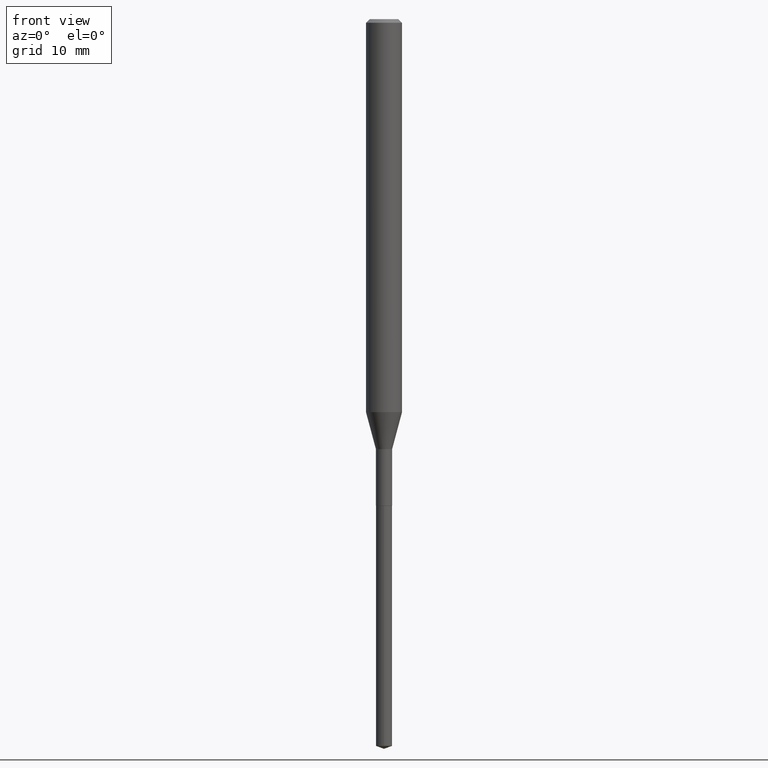
[diagram: clean part render]
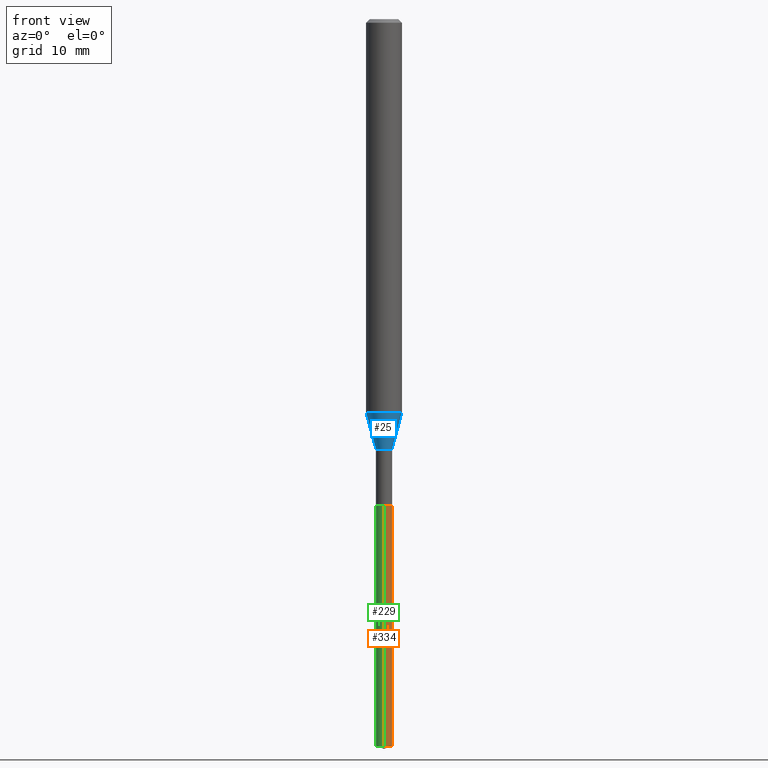
[diagram: same view with three faces highlighted in distinct colors, each labeled with its STEP entity id]
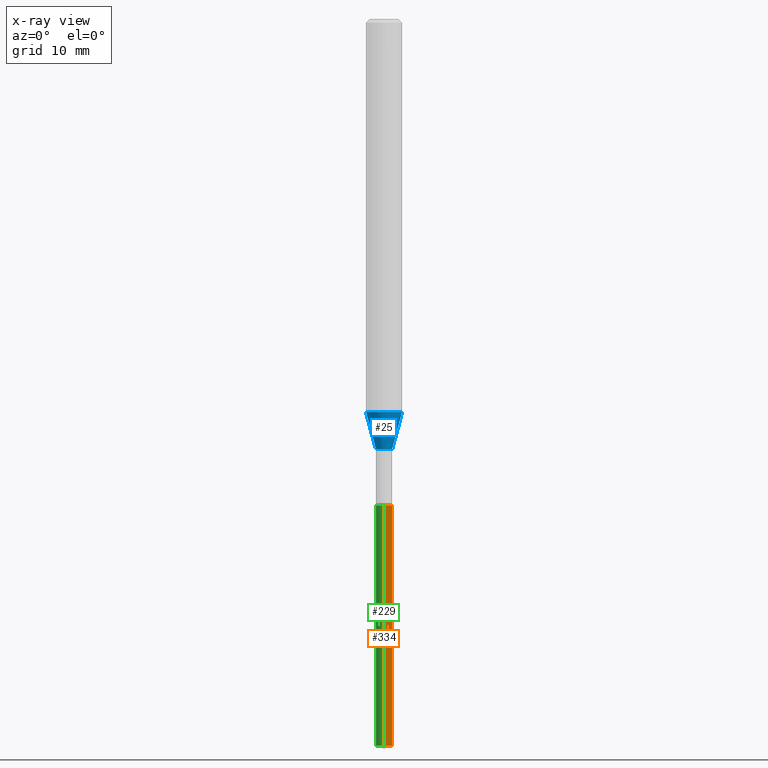
[diagram: x-ray of the same camera — body ghosted, the three highlighted faces saturated]
A machine part, front view with three faces highlighted in distinct colors.
The next image is the same camera in x-ray (body ghosted, the three faces saturated) — at least one of them is partly hidden behind the body in this view.
Their STEP definitions:

[orange] entity #334 — the highlighted cylindrical surface (edge-blend (fillet) strip) has radius 0.9004 mm, axis along (-0, 0, 1).
#16 = AXIS2_PLACEMENT_3D ( 'NONE', #324, #400, #214 ) ;
#17 = CIRCLE ( 'NONE', #16, 0.03545000000000000234 ) ;
#37 = DIRECTION ( 'NONE',  ( -2.445497401336110162E-29, 3.491440388959416459E-15, 1.000000000000000000 ) ) ;
#68 = VECTOR ( 'NONE', #132, 39.37007874015748143 ) ;
#70 = VERTEX_POINT ( 'NONE', #247 ) ;
#98 = CARTESIAN_POINT ( 'NONE',  ( -2.475460269239261638E-16, -0.03545000000000742696, -2.126000000000000334 ) ) ;
#101 = DIRECTION ( 'NONE',  ( -6.982962677686265922E-15, -1.000000000000000000, 0.000000000000000000 ) ) ;
#102 = LINE ( 'NONE', #260, #435 ) ;
#113 = DIRECTION ( 'NONE',  ( -2.445497401336110162E-29, 3.491440388959416459E-15, 1.000000000000000000 ) ) ;
#116 = EDGE_CURVE ( 'NONE', #254, #237, #394, .T. ) ;
#120 = ORIENTED_EDGE ( 'NONE', *, *, #328, .F. ) ;
#132 = DIRECTION ( 'NONE',  ( -2.445497401336109882E-29, 3.491440388959416459E-15, 1.000000000000000000 ) ) ;
#144 = CARTESIAN_POINT ( 'NONE',  ( 5.199066681949600871E-29, -7.422889326380528208E-15, -2.126000000000000334 ) ) ;
#157 = ORIENTED_EDGE ( 'NONE', *, *, #116, .F. ) ;
#159 = AXIS2_PLACEMENT_3D ( 'NONE', #446, #113, #101 ) ;
#185 = ORIENTED_EDGE ( 'NONE', *, *, #467, .T. ) ;
#194 = CARTESIAN_POINT ( 'NONE',  ( -2.475460269239261638E-16, -0.03545000000000742696, -2.126000000000000334 ) ) ;
#214 = DIRECTION ( 'NONE',  ( -6.982962677686265922E-15, -1.000000000000000000, 0.000000000000000000 ) ) ;
#237 = VERTEX_POINT ( 'NONE', #98 ) ;
#247 = CARTESIAN_POINT ( 'NONE',  ( 2.518873998270333339E-16, 0.03544999999999258466, -2.126000000000000334 ) ) ;
#252 = EDGE_CURVE ( 'NONE', #254, #387, #17, .T. ) ;
#254 = VERTEX_POINT ( 'NONE', #440 ) ;
#259 = DIRECTION ( 'NONE',  ( -6.982962677686265922E-15, -1.000000000000000000, 0.000000000000000000 ) ) ;
#260 = CARTESIAN_POINT ( 'NONE',  ( 2.518873998270074987E-16, 0.03544999999999257773, -2.126000000000000334 ) ) ;
#302 = CARTESIAN_POINT ( 'NONE',  ( 2.518873998270331367E-16, 0.03544999999998890705, -3.176097255195263092 ) ) ;
#324 = CARTESIAN_POINT ( 'NONE',  ( 7.767076790679798130E-29, -1.108924129550469119E-14, -3.176097255195263092 ) ) ;
#328 = EDGE_CURVE ( 'NONE', #237, #70, #363, .T. ) ;
#334 = ADVANCED_FACE ( 'NONE', ( #381 ), #341, .T. ) ;
#335 = DIRECTION ( 'NONE',  ( -2.445497401336109882E-29, 3.491440388959416459E-15, 1.000000000000000000 ) ) ;
#341 = CYLINDRICAL_SURFACE ( 'NONE', #407, 0.03545000000000000234 ) ;
#363 = CIRCLE ( 'NONE', #159, 0.03545000000000000234 ) ;
#370 = ORIENTED_EDGE ( 'NONE', *, *, #252, .T. ) ;
#376 = EDGE_LOOP ( 'NONE', ( #370, #185, #120, #157 ) ) ;
#381 = FACE_OUTER_BOUND ( 'NONE', #376, .T. ) ;
#387 = VERTEX_POINT ( 'NONE', #302 ) ;
#394 = LINE ( 'NONE', #194, #68 ) ;
#400 = DIRECTION ( 'NONE',  ( -2.445497401336110162E-29, 3.491440388959416459E-15, 1.000000000000000000 ) ) ;
#407 = AXIS2_PLACEMENT_3D ( 'NONE', #144, #37, #259 ) ;
#435 = VECTOR ( 'NONE', #335, 39.37007874015748143 ) ;
#440 = CARTESIAN_POINT ( 'NONE',  ( -2.475460269239004765E-16, -0.03545000000001109070, -3.176097255195263092 ) ) ;
#446 = CARTESIAN_POINT ( 'NONE',  ( 5.199066681949600871E-29, -7.422889326380528208E-15, -2.126000000000000334 ) ) ;
#467 = EDGE_CURVE ( 'NONE', #387, #70, #102, .T. ) ;

[blue] entity #25 — the highlighted conical surface has half-angle 15 deg.
#2 = DIRECTION ( 'NONE',  ( -2.445468806185136597E-29, 3.491481338843145583E-15, 1.000000000000000000 ) ) ;
#25 = ADVANCED_FACE ( 'NONE', ( #401 ), #364, .T. ) ;
#55 = AXIS2_PLACEMENT_3D ( 'NONE', #269, #418, #234 ) ;
#59 = DIRECTION ( 'NONE',  ( 1.000000000000000000, -6.982962677686262766E-15, 0.000000000000000000 ) ) ;
#73 = VERTEX_POINT ( 'NONE', #354 ) ;
#95 = EDGE_CURVE ( 'NONE', #330, #465, #156, .T. ) ;
#100 = CARTESIAN_POINT ( 'NONE',  ( 0.03544999999999996071, -6.808737758878017220E-15, -1.879200000000000204 ) ) ;
#111 = ORIENTED_EDGE ( 'NONE', *, *, #403, .F. ) ;
#126 = CARTESIAN_POINT ( 'NONE',  ( -0.07875000000000022260, -5.437423624557511400E-15, -1.717602200032267268 ) ) ;
#156 = LINE ( 'NONE', #385, #307 ) ;
#166 = CIRCLE ( 'NONE', #404, 0.03544999999999996071 ) ;
#172 = CIRCLE ( 'NONE', #478, 0.07875000000000022260 ) ;
#182 = EDGE_CURVE ( 'NONE', #330, #73, #166, .T. ) ;
#220 = CARTESIAN_POINT ( 'NONE',  ( 4.595524980583109418E-29, -6.561191731954039337E-15, -1.879200000000000204 ) ) ;
#230 = CARTESIAN_POINT ( 'NONE',  ( -0.03544999999999996071, -6.739280259005617242E-15, -1.879200000000000204 ) ) ;
#234 = DIRECTION ( 'NONE',  ( 1.000000000000000000, -6.982962677686262766E-15, 0.000000000000000000 ) ) ;
#262 = DIRECTION ( 'NONE',  ( -2.445468806185136597E-29, 3.491481338843145583E-15, 1.000000000000000000 ) ) ;
#269 = CARTESIAN_POINT ( 'NONE',  ( 4.595524980583109418E-29, -6.561191731954039337E-15, -1.879200000000000204 ) ) ;
#278 = ORIENTED_EDGE ( 'NONE', *, *, #182, .T. ) ;
#288 = EDGE_CURVE ( 'NONE', #73, #361, #445, .T. ) ;
#305 = DIRECTION ( 'NONE',  ( 1.000000000000000000, -6.982962677686265922E-15, 0.000000000000000000 ) ) ;
#307 = VECTOR ( 'NONE', #474, 39.37007874015747433 ) ;
#330 = VERTEX_POINT ( 'NONE', #230 ) ;
#332 = VECTOR ( 'NONE', #368, 39.37007874015747433 ) ;
#354 = CARTESIAN_POINT ( 'NONE',  ( 0.03544999999999996071, -6.808737758878017220E-15, -1.879200000000000204 ) ) ;
#360 = ORIENTED_EDGE ( 'NONE', *, *, #288, .T. ) ;
#361 = VERTEX_POINT ( 'NONE', #408 ) ;
#364 = CONICAL_SURFACE ( 'NONE', #55, 0.03544999999999996071, 0.2617993877991500740 ) ;
#368 = DIRECTION ( 'NONE',  ( 0.2588190451025213501, 1.565188264969621968E-15, 0.9659258262890682012 ) ) ;
#383 = CARTESIAN_POINT ( 'NONE',  ( 4.200342601613872805E-29, -5.996976028968592568E-15, -1.717602200032267268 ) ) ;
#385 = CARTESIAN_POINT ( 'NONE',  ( -0.03544999999999996071, -6.309304332127083952E-15, -1.879200000000000204 ) ) ;
#401 = FACE_OUTER_BOUND ( 'NONE', #416, .T. ) ;
#403 = EDGE_CURVE ( 'NONE', #465, #361, #172, .T. ) ;
#404 = AXIS2_PLACEMENT_3D ( 'NONE', #220, #262, #59 ) ;
#408 = CARTESIAN_POINT ( 'NONE',  ( 0.07875000000000022260, -6.546884339836387492E-15, -1.717602200032267268 ) ) ;
#416 = EDGE_LOOP ( 'NONE', ( #489, #278, #360, #111 ) ) ;
#418 = DIRECTION ( 'NONE',  ( -2.445468806185136597E-29, 3.491481338843145583E-15, 1.000000000000000000 ) ) ;
#445 = LINE ( 'NONE', #100, #332 ) ;
#465 = VERTEX_POINT ( 'NONE', #126 ) ;
#474 = DIRECTION ( 'NONE',  ( -0.2588190451025213501, 5.211531920934551042E-15, 0.9659258262890682012 ) ) ;
#478 = AXIS2_PLACEMENT_3D ( 'NONE', #383, #2, #305 ) ;
#489 = ORIENTED_EDGE ( 'NONE', *, *, #95, .F. ) ;

[green] entity #229 — the highlighted cylindrical surface (edge-blend (fillet) strip) has radius 0.9004 mm, axis along (-0, 0, 1).
#27 = CARTESIAN_POINT ( 'NONE',  ( 5.199066681949600871E-29, -7.422889326380528208E-15, -2.126000000000000334 ) ) ;
#35 = FACE_OUTER_BOUND ( 'NONE', #242, .T. ) ;
#68 = VECTOR ( 'NONE', #132, 39.37007874015748143 ) ;
#70 = VERTEX_POINT ( 'NONE', #247 ) ;
#84 = ORIENTED_EDGE ( 'NONE', *, *, #238, .F. ) ;
#98 = CARTESIAN_POINT ( 'NONE',  ( -2.475460269239261638E-16, -0.03545000000000742696, -2.126000000000000334 ) ) ;
#99 = ORIENTED_EDGE ( 'NONE', *, *, #116, .T. ) ;
#102 = LINE ( 'NONE', #260, #435 ) ;
#106 = AXIS2_PLACEMENT_3D ( 'NONE', #155, #337, #301 ) ;
#110 = DIRECTION ( 'NONE',  ( -2.445497401336110162E-29, 3.491440388959416459E-15, 1.000000000000000000 ) ) ;
#116 = EDGE_CURVE ( 'NONE', #254, #237, #394, .T. ) ;
#132 = DIRECTION ( 'NONE',  ( -2.445497401336109882E-29, 3.491440388959416459E-15, 1.000000000000000000 ) ) ;
#155 = CARTESIAN_POINT ( 'NONE',  ( 7.767076790679798130E-29, -1.108924129550469119E-14, -3.176097255195263092 ) ) ;
#178 = DIRECTION ( 'NONE',  ( -2.445497401336110162E-29, 3.491440388959416459E-15, 1.000000000000000000 ) ) ;
#194 = CARTESIAN_POINT ( 'NONE',  ( -2.475460269239261638E-16, -0.03545000000000742696, -2.126000000000000334 ) ) ;
#223 = CARTESIAN_POINT ( 'NONE',  ( 5.199066681949600871E-29, -7.422889326380528208E-15, -2.126000000000000334 ) ) ;
#229 = ADVANCED_FACE ( 'NONE', ( #35 ), #299, .T. ) ;
#237 = VERTEX_POINT ( 'NONE', #98 ) ;
#238 = EDGE_CURVE ( 'NONE', #70, #237, #389, .T. ) ;
#242 = EDGE_LOOP ( 'NONE', ( #294, #300, #99, #84 ) ) ;
#247 = CARTESIAN_POINT ( 'NONE',  ( 2.518873998270333339E-16, 0.03544999999999258466, -2.126000000000000334 ) ) ;
#254 = VERTEX_POINT ( 'NONE', #440 ) ;
#260 = CARTESIAN_POINT ( 'NONE',  ( 2.518873998270074987E-16, 0.03544999999999257773, -2.126000000000000334 ) ) ;
#291 = AXIS2_PLACEMENT_3D ( 'NONE', #27, #178, #447 ) ;
#294 = ORIENTED_EDGE ( 'NONE', *, *, #467, .F. ) ;
#299 = CYLINDRICAL_SURFACE ( 'NONE', #479, 0.03545000000000000234 ) ;
#300 = ORIENTED_EDGE ( 'NONE', *, *, #348, .T. ) ;
#301 = DIRECTION ( 'NONE',  ( -6.982962677686265922E-15, -1.000000000000000000, 0.000000000000000000 ) ) ;
#302 = CARTESIAN_POINT ( 'NONE',  ( 2.518873998270331367E-16, 0.03544999999998890705, -3.176097255195263092 ) ) ;
#335 = DIRECTION ( 'NONE',  ( -2.445497401336109882E-29, 3.491440388959416459E-15, 1.000000000000000000 ) ) ;
#337 = DIRECTION ( 'NONE',  ( -2.445497401336110162E-29, 3.491440388959416459E-15, 1.000000000000000000 ) ) ;
#348 = EDGE_CURVE ( 'NONE', #387, #254, #397, .T. ) ;
#387 = VERTEX_POINT ( 'NONE', #302 ) ;
#389 = CIRCLE ( 'NONE', #291, 0.03545000000000000234 ) ;
#394 = LINE ( 'NONE', #194, #68 ) ;
#397 = CIRCLE ( 'NONE', #106, 0.03545000000000000234 ) ;
#435 = VECTOR ( 'NONE', #335, 39.37007874015748143 ) ;
#440 = CARTESIAN_POINT ( 'NONE',  ( -2.475460269239004765E-16, -0.03545000000001109070, -3.176097255195263092 ) ) ;
#442 = DIRECTION ( 'NONE',  ( -6.982962677686265922E-15, -1.000000000000000000, 0.000000000000000000 ) ) ;
#447 = DIRECTION ( 'NONE',  ( -6.982962677686265922E-15, -1.000000000000000000, 0.000000000000000000 ) ) ;
#467 = EDGE_CURVE ( 'NONE', #387, #70, #102, .T. ) ;
#479 = AXIS2_PLACEMENT_3D ( 'NONE', #223, #110, #442 ) ;